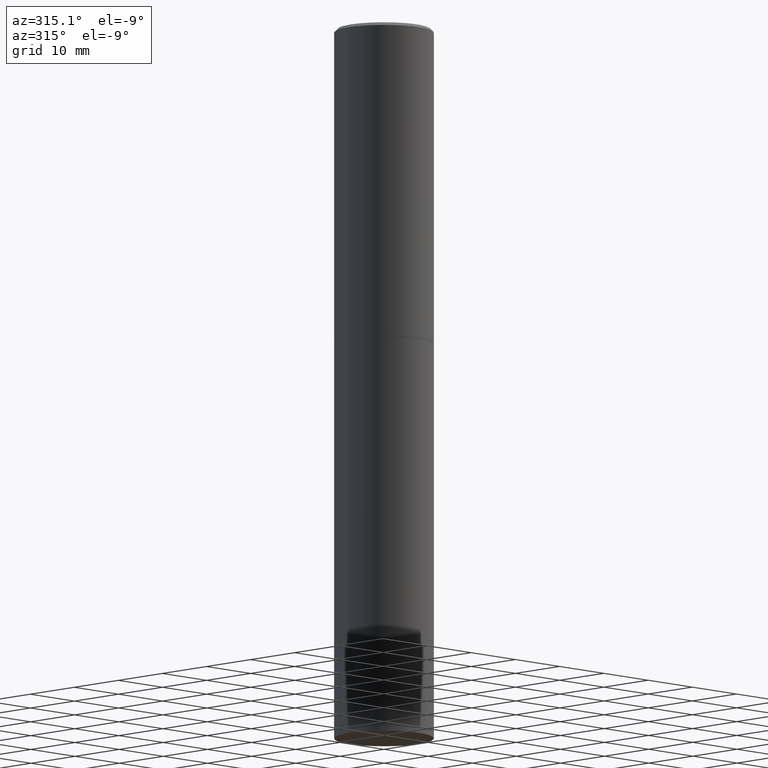
[diagram: clean part render]
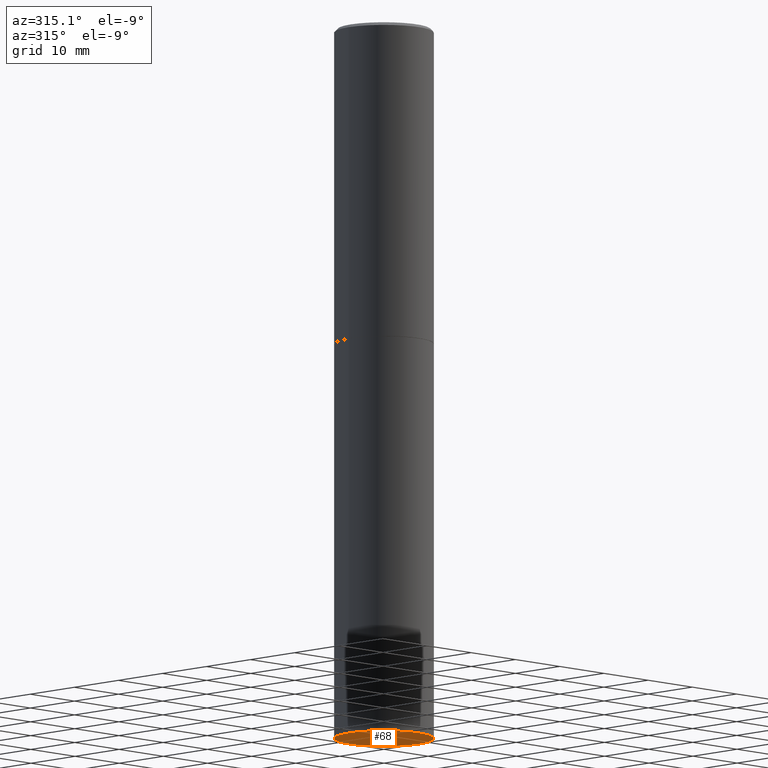
[diagram: same view with one face highlighted and labeled with its STEP entity id]
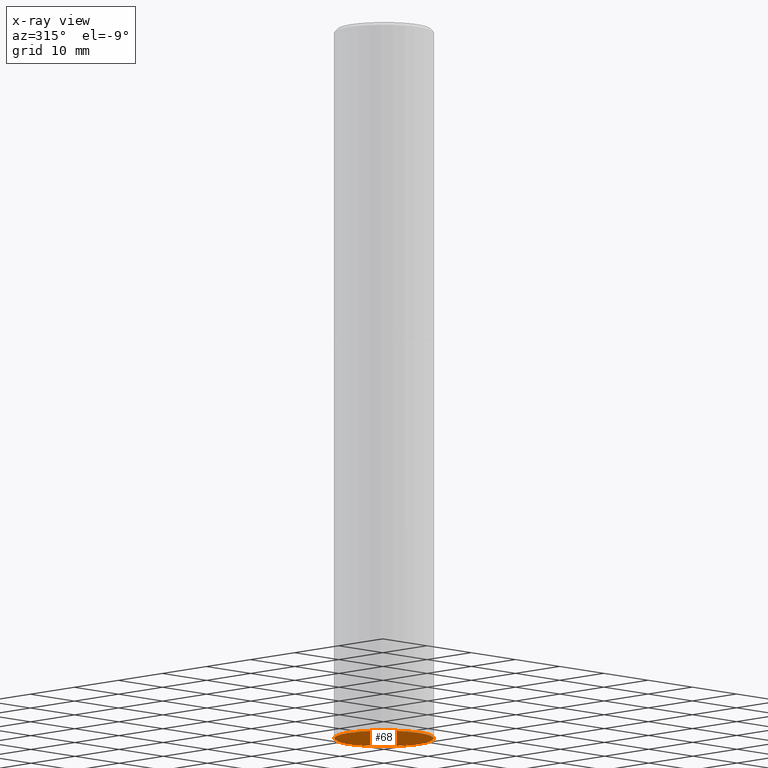
[diagram: x-ray of the same camera — body ghosted, the highlighted face saturated]
A machine part, auxiliary view. The second image highlights one B-rep face of the part: STEP entity #68.
The next image is the same camera in x-ray: the body ghosted, the highlighted face saturated — about 0% of this face is hidden behind the body in this view.
In plain terms, the highlighted planar face has unit normal (0, -0, -1).
Its self-contained STEP definition (entity closure, byte-faithful):
#4 = ORIENTED_EDGE ( 'NONE', *, *, #283, .F. ) ;
#24 = CARTESIAN_POINT ( 'NONE',  ( 2.199284095337399917E-15, 0.3149499999999842426, -4.527600000000000513 ) ) ;
#39 = EDGE_CURVE ( 'NONE', #350, #183, #246, .T. ) ;
#47 = ORIENTED_EDGE ( 'NONE', *, *, #39, .F. ) ;
#52 = CARTESIAN_POINT ( 'NONE',  ( 1.107210456688382298E-28, -1.580803090974622389E-14, -4.527599999999999625 ) ) ;
#54 = PLANE ( 'NONE',  #166 ) ;
#59 = CARTESIAN_POINT ( 'NONE',  ( 1.107210456688382298E-28, -1.580803090974622389E-14, -4.527599999999999625 ) ) ;
#68 = ADVANCED_FACE ( 'NONE', ( #333 ), #54, .T. ) ;
#76 = DIRECTION ( 'NONE',  ( -2.445468806185136597E-29, 3.491481338843145583E-15, 1.000000000000000000 ) ) ;
#88 = AXIS2_PLACEMENT_3D ( 'NONE', #59, #230, #306 ) ;
#95 = EDGE_LOOP ( 'NONE', ( #47, #4 ) ) ;
#121 = CARTESIAN_POINT ( 'NONE',  ( 0.3149500000000000077, -1.800731500508351534E-14, -4.527599999999999625 ) ) ;
#158 = AXIS2_PLACEMENT_3D ( 'NONE', #52, #76, #163 ) ;
#163 = DIRECTION ( 'NONE',  ( 1.000000000000000000, -6.982962677686269866E-15, 0.000000000000000000 ) ) ;
#166 = AXIS2_PLACEMENT_3D ( 'NONE', #24, #221, #301 ) ;
#183 = VERTEX_POINT ( 'NONE', #190 ) ;
#190 = CARTESIAN_POINT ( 'NONE',  ( -0.3149500000000000077, -9.171433798728249845E-15, -4.527599999999999625 ) ) ;
#221 = DIRECTION ( 'NONE',  ( 2.438088387897960049E-29, -3.491481338843145188E-15, -1.000000000000000000 ) ) ;
#230 = DIRECTION ( 'NONE',  ( -2.445468806185136597E-29, 3.491481338843145583E-15, 1.000000000000000000 ) ) ;
#246 = CIRCLE ( 'NONE', #158, 0.3149500000000000077 ) ;
#251 = CIRCLE ( 'NONE', #88, 0.3149500000000000077 ) ;
#283 = EDGE_CURVE ( 'NONE', #183, #350, #251, .T. ) ;
#301 = DIRECTION ( 'NONE',  ( -1.000000000000000000, 6.982962677686265922E-15, -4.876176775795935793E-29 ) ) ;
#306 = DIRECTION ( 'NONE',  ( 1.000000000000000000, -6.982962677686269866E-15, 0.000000000000000000 ) ) ;
#333 = FACE_OUTER_BOUND ( 'NONE', #95, .T. ) ;
#350 = VERTEX_POINT ( 'NONE', #121 ) ;